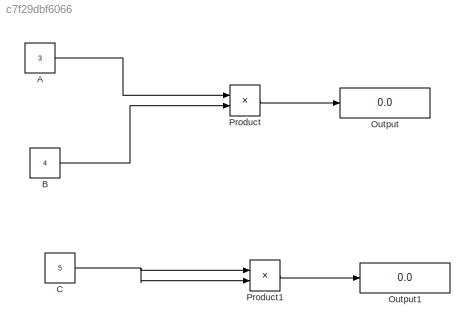
MODEL slx_c7f29dbf6066
KIND model
CONFIG AbsTol = auto
CONFIG EnableMultiTasking = off
CONFIG FixedStep = auto
CONFIG MaxStep = auto
CONFIG MinStep = auto
CONFIG RelTol = 1e-3
CONFIG SampleTimeConstraint = Unconstrained
CONFIG SolverName = VariableStepAuto
CONFIG StartTime = 0.0
CONFIG StopTime = 10.0
BLOCK [Constant] A
  Value = 3
BLOCK [Constant] B
  Value = 4
BLOCK [Constant] C
  Value = 5
BLOCK [Display] Output
  Decimation = 1
BLOCK [Display] Output1
  Decimation = 1
BLOCK [Product] Product
BLOCK [Product] Product1
LINE A:1 -> Product:1
LINE B:1 -> Product:2
NET C:1 -> Product1:1, Product1:2
LINE Product1:1 -> Output1:1
LINE Product:1 -> Output:1
note: NET lines group one-source signal fan-out (src -> all destinations, sorted); 1:1 wires keep LINE
